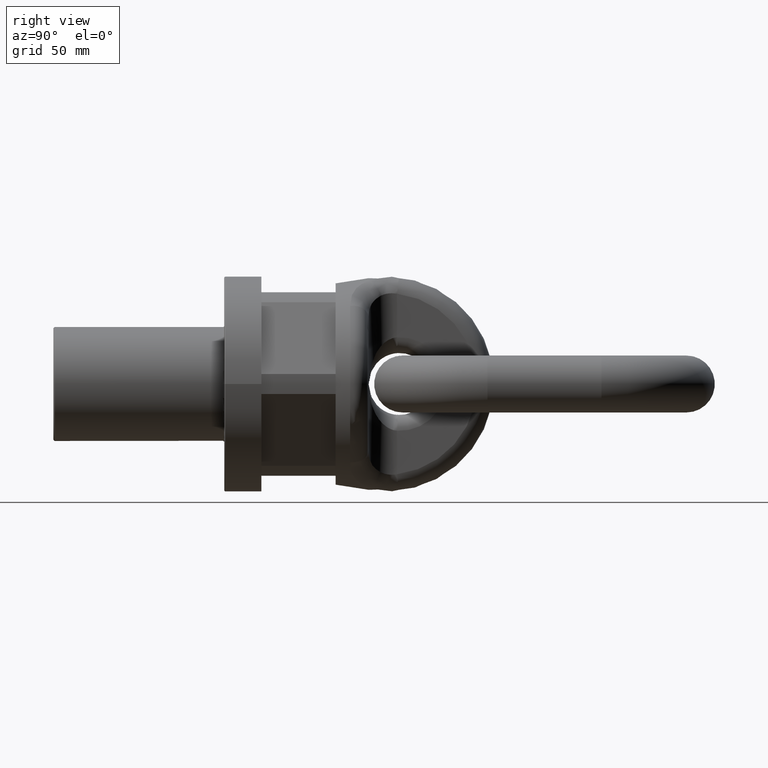
[diagram: clean part render]
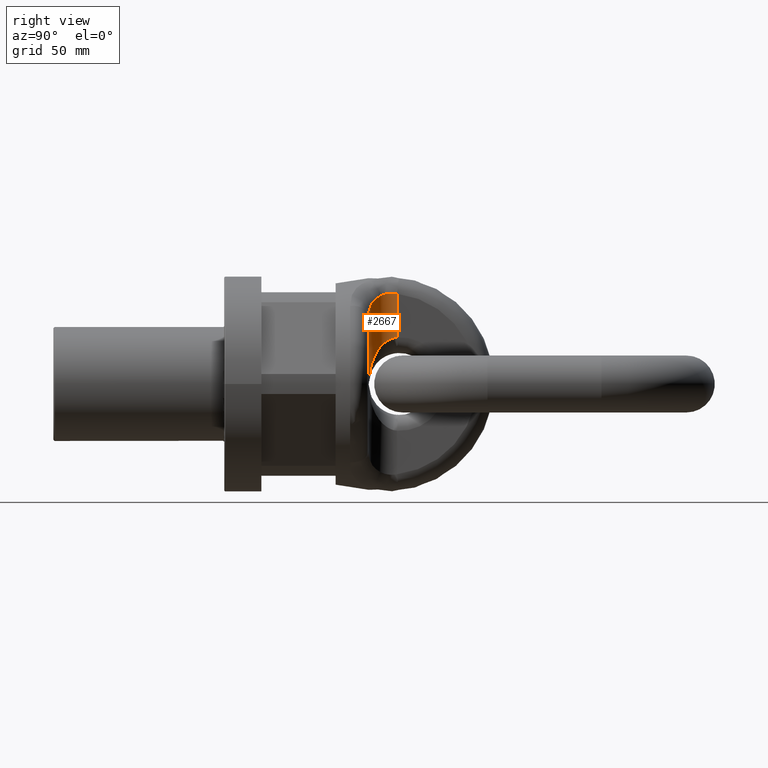
[diagram: same view with one face highlighted and labeled with its STEP entity id]
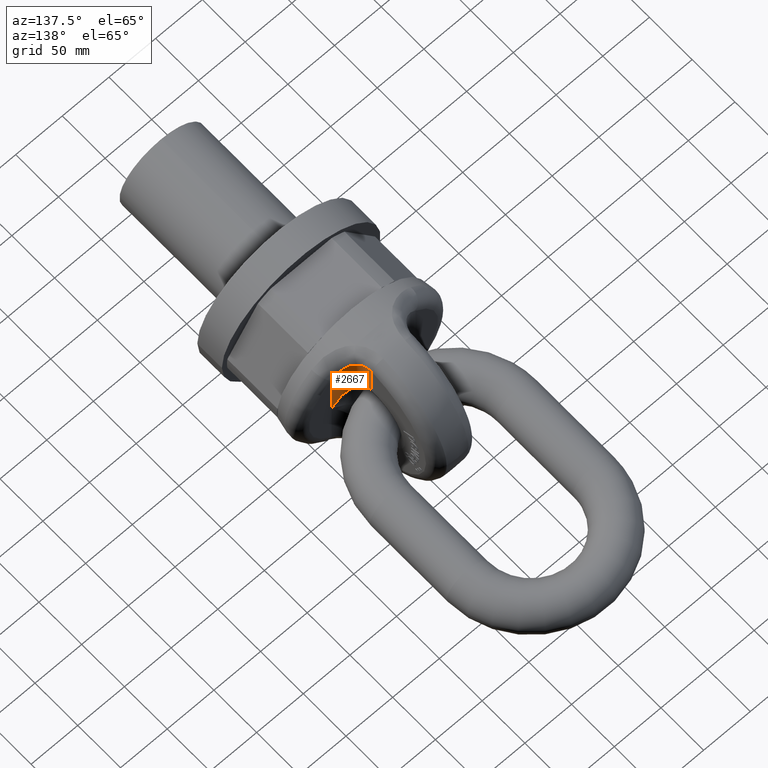
[diagram: same view with one face highlighted and labeled with its STEP entity id]
A machine part, right view. The second image highlights one B-rep face of the part: STEP entity #2667.
A second angle (auxiliary view) of the same face is appended — the face is thin or edge-on in the first view.
In plain terms, the highlighted cylindrical surface (edge-blend (fillet) strip) has radius 22.5 mm, axis along (0, 0, -1).
Its self-contained STEP definition (entity closure, byte-faithful):
#351=B_SPLINE_CURVE_WITH_KNOTS('',3,(#6972,#6973,#6974,#6975,#6976,#6977,
#6978,#6979,#6980,#6981,#6982,#6983),.UNSPECIFIED.,.F.,.F.,(4,2,2,2,2,4),
(0.,0.25,0.5,0.75,0.875,1.),.UNSPECIFIED.);
#352=B_SPLINE_CURVE_WITH_KNOTS('',3,(#6984,#6985,#6986,#6987,#6988,#6989),
 .UNSPECIFIED.,.F.,.F.,(4,2,4),(0.,0.5,1.),.UNSPECIFIED.);
#353=B_SPLINE_CURVE_WITH_KNOTS('',3,(#6991,#6992,#6993,#6994,#6995,#6996,
#6997,#6998,#6999,#7000),.UNSPECIFIED.,.F.,.F.,(4,2,2,2,4),(0.,0.25,0.500000000000001,
0.75,1.),.UNSPECIFIED.);
#1820=FACE_OUTER_BOUND('',#3102,.T.);
#2028=CYLINDRICAL_SURFACE('',#5650,22.5);
#2071=LINE('',#6788,#2327);
#2099=LINE('',#6969,#2355);
#2327=VECTOR('',#5927,1.);
#2355=VECTOR('',#5961,1.);
#2667=ADVANCED_FACE('',(#1820),#2028,.F.);
#3102=EDGE_LOOP('',(#3511,#3512,#3513,#3514,#3515));
#3511=ORIENTED_EDGE('',*,*,#5058,.F.);
#3512=ORIENTED_EDGE('',*,*,#5059,.T.);
#3513=ORIENTED_EDGE('',*,*,#5008,.F.);
#3514=ORIENTED_EDGE('',*,*,#5060,.T.);
#3515=ORIENTED_EDGE('',*,*,#5061,.T.);
#4598=VERTEX_POINT('',#6789);
#4599=VERTEX_POINT('',#6790);
#4648=VERTEX_POINT('',#6970);
#4649=VERTEX_POINT('',#6971);
#4650=VERTEX_POINT('',#6990);
#5008=EDGE_CURVE('',#4598,#4599,#2071,.T.);
#5058=EDGE_CURVE('',#4648,#4649,#2099,.T.);
#5059=EDGE_CURVE('',#4648,#4599,#351,.T.);
#5060=EDGE_CURVE('',#4598,#4650,#352,.T.);
#5061=EDGE_CURVE('',#4650,#4649,#353,.T.);
#5650=AXIS2_PLACEMENT_3D('',#7001,#5962,#5963);
#5927=DIRECTION('',(0.,0.,-1.));
#5961=DIRECTION('',(0.,0.,1.));
#5962=DIRECTION('',(0.,0.,-1.));
#5963=DIRECTION('',(-1.,0.,0.));
#6788=CARTESIAN_POINT('',(22.5,136.5,-80.7636097245569));
#6789=CARTESIAN_POINT('',(22.5,136.5,71.3021738799036));
#6790=CARTESIAN_POINT('',(22.5,136.5,36.9459064038223));
#6969=CARTESIAN_POINT('',(45.,114.,80.7636097245569));
#6970=CARTESIAN_POINT('',(45.,114.,0.));
#6971=CARTESIAN_POINT('',(45.,114.,52.4346080098816));
#6972=CARTESIAN_POINT('',(45.,114.,1.01424973528416E-30));
#6973=CARTESIAN_POINT('',(42.6796458676786,114.,3.71113403790254));
#6974=CARTESIAN_POINT('',(40.3505453406946,114.354110961069,7.43607449220153));
#6975=CARTESIAN_POINT('',(35.7657910210794,115.841171028172,14.7842151418069));
#6976=CARTESIAN_POINT('',(33.5341459677607,116.954737879725,18.36810528914));
#6977=CARTESIAN_POINT('',(29.2504734915638,120.207808778468,25.2928396108446));
#6978=CARTESIAN_POINT('',(27.2119372325032,122.30962099412,28.6080987828378));
#6979=CARTESIAN_POINT('',(24.6651584390897,126.721082522569,32.8634050963583));
#6980=CARTESIAN_POINT('',(23.9300446778391,128.360555976645,34.1149930376484));
#6981=CARTESIAN_POINT('',(22.8301042872152,132.176888808805,36.0924552129322));
#6982=CARTESIAN_POINT('',(22.5,134.280116132013,36.7589762121095));
#6983=CARTESIAN_POINT('',(22.5,136.5,36.9459064038223));
#6984=CARTESIAN_POINT('',(22.5,136.5,71.3021738799036));
#6985=CARTESIAN_POINT('',(22.5,134.136149871878,71.7405244938232));
#6986=CARTESIAN_POINT('',(22.8809010279479,131.745643592283,71.8087291342161));
#6987=CARTESIAN_POINT('',(24.3554840415549,127.244601303642,71.1974684993103));
#6988=CARTESIAN_POINT('',(25.4138604101566,125.208672244606,70.5375996978553));
#6989=CARTESIAN_POINT('',(26.6960400344445,123.41508312677,69.5886323510678));
#6990=CARTESIAN_POINT('',(26.6960400344446,123.41508312677,69.5886323510678));
#6991=CARTESIAN_POINT('',(26.6960400344446,123.41508312677,69.5886323510678));
#6992=CARTESIAN_POINT('',(27.9432831865952,121.670365224054,68.665522201386));
#6993=CARTESIAN_POINT('',(29.3774478325431,120.186033850563,67.6464072610895));
#6994=CARTESIAN_POINT('',(32.4831272503067,117.697406447039,65.2871163415466));
#6995=CARTESIAN_POINT('',(34.1400709848455,116.713482856629,63.9536540301166));
#6996=CARTESIAN_POINT('',(37.3999945792174,115.247135805187,61.0464304158754));
#6997=CARTESIAN_POINT('',(39.0374732159405,114.747032777714,59.4424522356975));
#6998=CARTESIAN_POINT('',(42.134144679845,114.127468138174,56.0706128442221));
#6999=CARTESIAN_POINT('',(43.6064189154854,114.,54.2950333972065));
#7000=CARTESIAN_POINT('',(45.,114.,52.4346080098816));
#7001=CARTESIAN_POINT('',(45.,136.5,93.5));